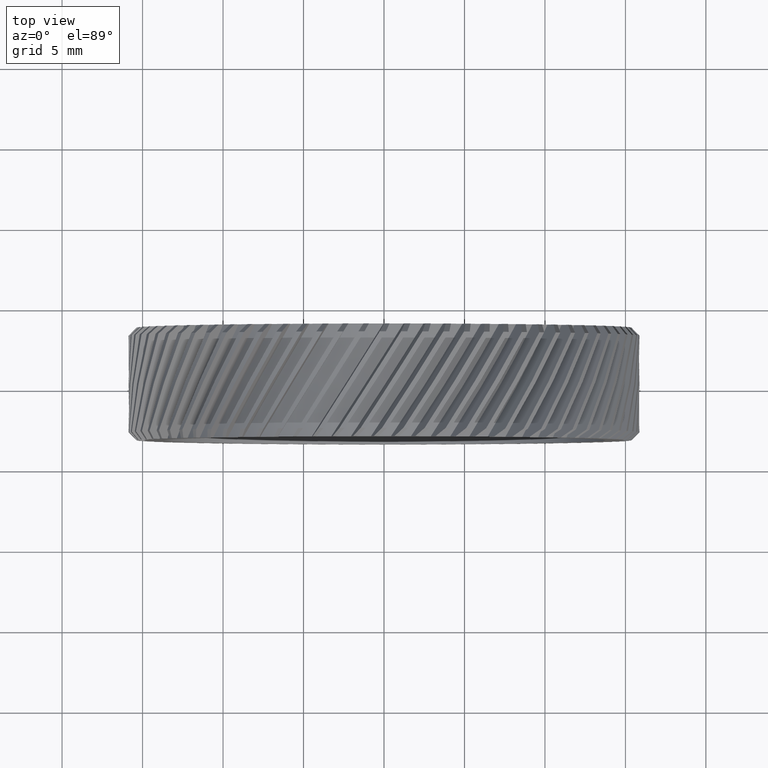
[diagram: clean part render]
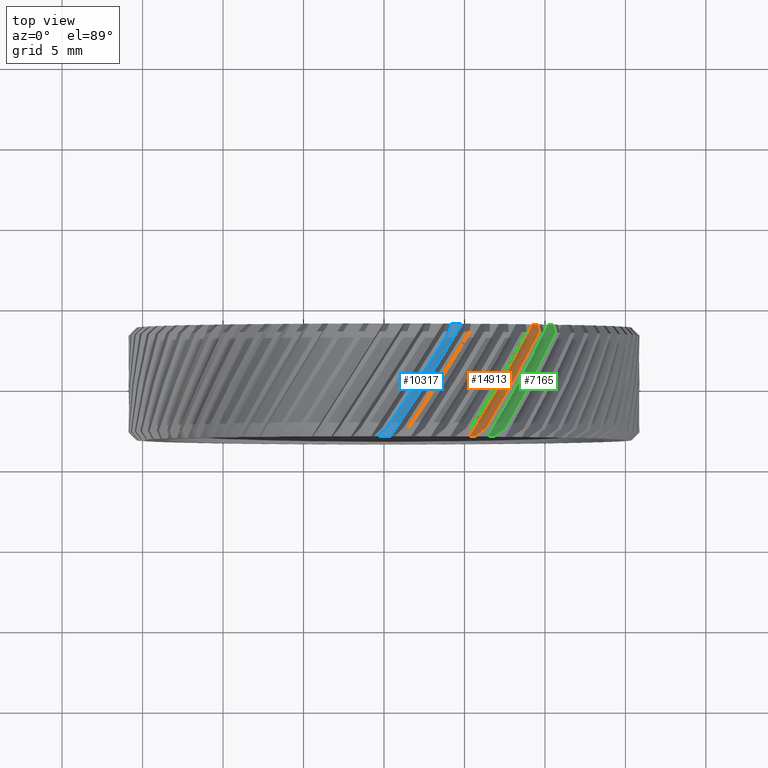
[diagram: same view with three faces highlighted in distinct colors, each labeled with its STEP entity id]
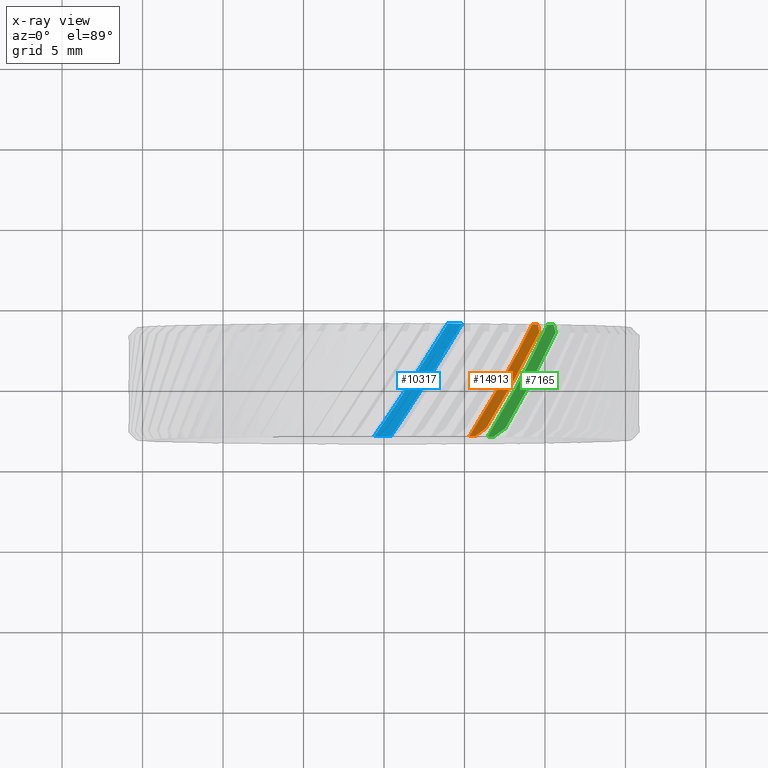
[diagram: x-ray of the same camera — body ghosted, the three highlighted faces saturated]
A machine part, top view with three faces highlighted in distinct colors.
The next image is the same camera in x-ray (body ghosted, the three faces saturated) — at least one of them is partly hidden behind the body in this view.
Their STEP definitions:

[orange] entity #14913 — the highlighted planar face has unit normal (0.6183, -0.5297, -0.5806).
#96 = VERTEX_POINT ( 'NONE', #8241 ) ;
#284 = LINE ( 'NONE', #6200, #8007 ) ;
#1459 = CARTESIAN_POINT ( 'NONE',  ( 9.653973124077118900, -6.830884482231923000, 12.60223900422448500 ) ) ;
#1503 = CARTESIAN_POINT ( 'NONE',  ( 6.344330811526889500, -12.83088448223192100, 14.55215075354536200 ) ) ;
#1509 = CARTESIAN_POINT ( 'NONE',  ( 7.523855290051343100, -10.89058348032955300, 14.03791106356484900 ) ) ;
#1564 = EDGE_CURVE ( 'NONE', #9020, #96, #4870, .T. ) ;
#1571 = CARTESIAN_POINT ( 'NONE',  ( 6.344330811526889500, -12.83088448223192100, 14.55215075354536200 ) ) ;
#1707 = CARTESIAN_POINT ( 'NONE',  ( 5.895620163532926000, -13.16554886368707000, 14.37966592381650300 ) ) ;
#2178 = VERTEX_POINT ( 'NONE', #14129 ) ;
#2230 = DIRECTION ( 'NONE',  ( -0.6845471059286898400, 0.0000000000000000000, -0.7289686274214104400 ) ) ;
#2437 = PLANE ( 'NONE',  #9044 ) ;
#2487 = CARTESIAN_POINT ( 'NONE',  ( 6.713602333045022500, -11.09272791176794500, 13.35951328079593600 ) ) ;
#3045 = FACE_OUTER_BOUND ( 'NONE', #9290, .T. ) ;
#3517 = VERTEX_POINT ( 'NONE', #1503 ) ;
#3561 = CARTESIAN_POINT ( 'NONE',  ( 9.653973124077118900, -6.830884482231923000, 12.60223900422448500 ) ) ;
#3957 = VECTOR ( 'NONE', #2230, 1000.000000000000100 ) ;
#3995 = ORIENTED_EDGE ( 'NONE', *, *, #15426, .F. ) ;
#4111 = CARTESIAN_POINT ( 'NONE',  ( 5.301741328456820700, -13.33088448223191600, 13.89809929041137700 ) ) ;
#4157 = CARTESIAN_POINT ( 'NONE',  ( 9.590179136699321200, -6.497228794031610900, 12.22988214837162800 ) ) ;
#4366 = VERTEX_POINT ( 'NONE', #10770 ) ;
#4860 =( BOUNDED_CURVE ( )  B_SPLINE_CURVE ( 3, ( #1459, #9143, #1509, #1571 ),
 .UNSPECIFIED., .F., .T. ) 
 B_SPLINE_CURVE_WITH_KNOTS ( ( 4, 4 ),
 ( 1.671082941479641100, 1.913651328048305800 ),
 .UNSPECIFIED. ) 
 CURVE ( )  GEOMETRIC_REPRESENTATION_ITEM ( )  RATIONAL_B_SPLINE_CURVE ( ( 1.000000000000000000, 0.9951027224248083500, 0.9951027224248083500, 1.000000000000000000 ) ) 
 REPRESENTATION_ITEM ( '' )  );
#4870 =( BOUNDED_CURVE ( )  B_SPLINE_CURVE ( 3, ( #13782, #2487, #6326, #8805 ),
 .UNSPECIFIED., .F., .F. ) 
 B_SPLINE_CURVE_WITH_KNOTS ( ( 4, 4 ),
 ( 4.322839739403873300, 4.626427912860425100 ),
 .UNSPECIFIED. ) 
 CURVE ( )  GEOMETRIC_REPRESENTATION_ITEM ( )  RATIONAL_B_SPLINE_CURVE ( ( 1.000000000000000000, 0.9923342545387088300, 0.9923342545387088300, 1.000000000000000000 ) ) 
 REPRESENTATION_ITEM ( '' )  );
#5045 = CARTESIAN_POINT ( 'NONE',  ( -10.37324339801700600, -3.199738791282192200, -12.03759108788204700 ) ) ;
#5091 = ORIENTED_EDGE ( 'NONE', *, *, #9904, .T. ) ;
#5181 = B_SPLINE_CURVE_WITH_KNOTS ( 'NONE', 3,
 ( #7944, #7891, #4157, #6767 ),
 .UNSPECIFIED., .F., .F.,
 ( 4, 4 ),
 ( 3.018490012218700600E-007, 0.0007563439863345751400 ),
 .UNSPECIFIED. ) ;
#6030 = DIRECTION ( 'NONE',  ( 0.6845471059286898400, 0.0000000000000000000, 0.7289686274214104400 ) ) ;
#6179 = CARTESIAN_POINT ( 'NONE',  ( -4.118017072649953600, -13.33088448223191600, 3.867075431241892700 ) ) ;
#6200 = CARTESIAN_POINT ( 'NONE',  ( -0.9309634379024506200, -6.330884482231919500, 0.8742328588211456500 ) ) ;
#6326 = CARTESIAN_POINT ( 'NONE',  ( 8.027788309750224700, -8.741369664623691800, 12.61363017691053800 ) ) ;
#6690 = CARTESIAN_POINT ( 'NONE',  ( 6.344330811526889500, -12.83088448223192100, 14.55215075354536200 ) ) ;
#6767 = CARTESIAN_POINT ( 'NONE',  ( 9.557577181781178800, -6.330884482231919500, 12.04339418163733900 ) ) ;
#7331 = EDGE_CURVE ( 'NONE', #4366, #9020, #7748, .T. ) ;
#7748 = LINE ( 'NONE', #6179, #3957 ) ;
#7891 = CARTESIAN_POINT ( 'NONE',  ( 9.622298952574166000, -6.663904853507483000, 12.41615937148640800 ) ) ;
#7944 = CARTESIAN_POINT ( 'NONE',  ( 9.653973124077118900, -6.830884482231923000, 12.60223900422448500 ) ) ;
#8007 = VECTOR ( 'NONE', #6030, 1000.000000000000100 ) ;
#8241 = CARTESIAN_POINT ( 'NONE',  ( 9.214076613013750400, -6.330884482231915900, 11.67760322880998200 ) ) ;
#8805 = CARTESIAN_POINT ( 'NONE',  ( 9.214076613013750400, -6.330884482231915900, 11.67760322880998200 ) ) ;
#8809 = DIRECTION ( 'NONE',  ( 0.6182830696335974700, -0.5297378573991635700, -0.5806064486746589400 ) ) ;
#9020 = VERTEX_POINT ( 'NONE', #4111 ) ;
#9044 = AXIS2_PLACEMENT_3D ( 'NONE', #5045, #8809, #15024 ) ;
#9134 = VERTEX_POINT ( 'NONE', #3561 ) ;
#9143 = CARTESIAN_POINT ( 'NONE',  ( 8.632498728886641700, -8.880740722461785800, 13.38474172892253800 ) ) ;
#9290 = EDGE_LOOP ( 'NONE', ( #15575, #13491, #5091, #3995, #10018, #15689 ) ) ;
#9904 = EDGE_CURVE ( 'NONE', #4366, #3517, #12868, .T. ) ;
#10018 = ORIENTED_EDGE ( 'NONE', *, *, #11341, .T. ) ;
#10770 = CARTESIAN_POINT ( 'NONE',  ( 5.670726208858723400, -13.33088448223191600, 14.29102827875458300 ) ) ;
#11341 = EDGE_CURVE ( 'NONE', #9134, #2178, #5181, .T. ) ;
#12868 = B_SPLINE_CURVE_WITH_KNOTS ( 'NONE', 3,
 ( #15270, #1707, #14194, #6690 ),
 .UNSPECIFIED., .F., .F.,
 ( 4, 4 ),
 ( 3.542590250234800800E-007, 0.0008789486521192316100 ),
 .UNSPECIFIED. ) ;
#13491 = ORIENTED_EDGE ( 'NONE', *, *, #7331, .F. ) ;
#13782 = CARTESIAN_POINT ( 'NONE',  ( 5.301741328456820700, -13.33088448223191600, 13.89809929041137700 ) ) ;
#14129 = CARTESIAN_POINT ( 'NONE',  ( 9.557577181781178800, -6.330884482231919500, 12.04339418163733900 ) ) ;
#14194 = CARTESIAN_POINT ( 'NONE',  ( 6.120155976954146500, -12.99883605878413000, 14.46666566005741200 ) ) ;
#14913 = ADVANCED_FACE ( 'NONE', ( #3045 ), #2437, .F. ) ;
#15024 = DIRECTION ( 'NONE',  ( 0.3861622788014271200, 0.8481614247524720300, -0.3626305171834624500 ) ) ;
#15270 = CARTESIAN_POINT ( 'NONE',  ( 5.670726208858723400, -13.33088448223191600, 14.29102827875458300 ) ) ;
#15337 = EDGE_CURVE ( 'NONE', #96, #2178, #284, .T. ) ;
#15426 = EDGE_CURVE ( 'NONE', #9134, #3517, #4860, .T. ) ;
#15575 = ORIENTED_EDGE ( 'NONE', *, *, #1564, .F. ) ;
#15689 = ORIENTED_EDGE ( 'NONE', *, *, #15337, .F. ) ;

[blue] entity #10317 — the highlighted cylindrical surface (partial cylindrical patch) has radius 14.875 mm, axis along (0, 1, 0).
#250 = DIRECTION ( 'NONE',  ( 0.0000000000000000000, 1.000000000000000000, 0.0000000000000000000 ) ) ;
#1757 = CARTESIAN_POINT ( 'NONE',  ( 0.4362179220286097600, -13.33088448223191600, 14.86860245364376200 ) ) ;
#1817 = EDGE_CURVE ( 'NONE', #3806, #11565, #14844, .T. ) ;
#1946 = EDGE_LOOP ( 'NONE', ( #10525, #9625, #15926, #10042 ) ) ;
#2328 = CIRCLE ( 'NONE', #12988, 14.87500000000000700 ) ;
#2572 = DIRECTION ( 'NONE',  ( -0.0000000000000000000, 1.000000000000000000, -0.0000000000000000000 ) ) ;
#3806 = VERTEX_POINT ( 'NONE', #6639 ) ;
#3811 = CARTESIAN_POINT ( 'NONE',  ( -0.5987808434798008700, -13.33088448223191400, 14.86294339965950000 ) ) ;
#4057 = VERTEX_POINT ( 'NONE', #16099 ) ;
#4625 = CARTESIAN_POINT ( 'NONE',  ( 0.0000000000000000000, -13.33088448223191600, 0.0000000000000000000 ) ) ;
#5927 = DIRECTION ( 'NONE',  ( -0.0000000000000000000, -1.000000000000000000, -0.0000000000000000000 ) ) ;
#6333 = EDGE_CURVE ( 'NONE', #15725, #11565, #10118, .T. ) ;
#6351 = DIRECTION ( 'NONE',  ( -0.4067366430758204700, 0.0000000000000000000, -0.9135454576425918700 ) ) ;
#6639 = CARTESIAN_POINT ( 'NONE',  ( 3.954071477746325100, -6.330884482231919500, 14.33983764722854600 ) ) ;
#6813 = CARTESIAN_POINT ( 'NONE',  ( 1.946669067784003100, -11.09272791176794500, 14.82428854706233200 ) ) ;
#7723 = DIRECTION ( 'NONE',  ( 0.4067366430758009900, 0.0000000000000000000, 0.9135454576426005300 ) ) ;
#7974 = CARTESIAN_POINT ( 'NONE',  ( 3.954071477746325100, -6.330884482231919500, 14.33983764722854600 ) ) ;
#9065 = CYLINDRICAL_SURFACE ( 'NONE', #9552, 14.87500000000000700 ) ;
#9464 = EDGE_CURVE ( 'NONE', #15725, #4057, #15832, .T. ) ;
#9552 = AXIS2_PLACEMENT_3D ( 'NONE', #11469, #250, #7723 ) ;
#9625 = ORIENTED_EDGE ( 'NONE', *, *, #10284, .F. ) ;
#9629 = FACE_OUTER_BOUND ( 'NONE', #1946, .T. ) ;
#10042 = ORIENTED_EDGE ( 'NONE', *, *, #6333, .F. ) ;
#10118 = CIRCLE ( 'NONE', #12197, 14.87500000000000700 ) ;
#10284 = EDGE_CURVE ( 'NONE', #3806, #4057, #2328, .T. ) ;
#10317 = ADVANCED_FACE ( 'NONE', ( #9629 ), #9065, .T. ) ;
#10524 = CARTESIAN_POINT ( 'NONE',  ( 2.469616423057035400, -8.768720868185248200, 14.74916176484697800 ) ) ;
#10525 = ORIENTED_EDGE ( 'NONE', *, *, #9464, .T. ) ;
#10533 = CARTESIAN_POINT ( 'NONE',  ( 0.4362179220286097600, -13.33088448223191600, 14.86860245364376200 ) ) ;
#11469 = CARTESIAN_POINT ( 'NONE',  ( 0.0000000000000000000, 46.02073106022621100, 0.0000000000000000000 ) ) ;
#11565 = VERTEX_POINT ( 'NONE', #3811 ) ;
#11666 = CARTESIAN_POINT ( 'NONE',  ( 0.9398259385467447900, -11.12077022890075600, 14.92492898636009400 ) ) ;
#11893 = CARTESIAN_POINT ( 'NONE',  ( 4.861182011085586100, -6.330884482231915900, 14.05825502881129600 ) ) ;
#12197 = AXIS2_PLACEMENT_3D ( 'NONE', #4625, #5927, #13485 ) ;
#12693 = CARTESIAN_POINT ( 'NONE',  ( 0.0000000000000000000, -6.330884482231915900, 0.0000000000000000000 ) ) ;
#12988 = AXIS2_PLACEMENT_3D ( 'NONE', #12693, #2572, #6351 ) ;
#13044 = CARTESIAN_POINT ( 'NONE',  ( -0.5987808434798008700, -13.33088448223191400, 14.86294339965950000 ) ) ;
#13485 = DIRECTION ( 'NONE',  ( 0.4067366430758009900, 0.0000000000000000000, 0.9135454576426005300 ) ) ;
#14384 = CARTESIAN_POINT ( 'NONE',  ( 3.433051325515616500, -8.741369664623690000, 14.55208610414348800 ) ) ;
#14844 =( BOUNDED_CURVE ( )  B_SPLINE_CURVE ( 3, ( #7974, #10524, #11666, #13044 ),
 .UNSPECIFIED., .F., .T. ) 
 B_SPLINE_CURVE_WITH_KNOTS ( ( 4, 4 ),
 ( 1.720620993473467500, 2.029940400860878600 ),
 .UNSPECIFIED. ) 
 CURVE ( )  GEOMETRIC_REPRESENTATION_ITEM ( )  RATIONAL_B_SPLINE_CURVE ( ( 1.000000000000000000, 0.9920426723627562300, 0.9920426723627562300, 1.000000000000000000 ) ) 
 REPRESENTATION_ITEM ( '' )  );
#15725 = VERTEX_POINT ( 'NONE', #1757 ) ;
#15832 =( BOUNDED_CURVE ( )  B_SPLINE_CURVE ( 3, ( #10533, #6813, #14384, #11893 ),
 .UNSPECIFIED., .F., .T. ) 
 B_SPLINE_CURVE_WITH_KNOTS ( ( 4, 4 ),
 ( 4.322839739403873300, 4.626427912860425100 ),
 .UNSPECIFIED. ) 
 CURVE ( )  GEOMETRIC_REPRESENTATION_ITEM ( )  RATIONAL_B_SPLINE_CURVE ( ( 1.000000000000000000, 0.9923342545387088300, 0.9923342545387088300, 1.000000000000000000 ) ) 
 REPRESENTATION_ITEM ( '' )  );
#15926 = ORIENTED_EDGE ( 'NONE', *, *, #1817, .T. ) ;
#16099 = CARTESIAN_POINT ( 'NONE',  ( 4.861182011085586100, -6.330884482231915900, 14.05825502881129600 ) ) ;

[green] entity #7165 — the highlighted planar face has unit normal (0.5675, -0.5297, -0.6303).
#731 = CARTESIAN_POINT ( 'NONE',  ( 6.446110350435212400, -13.33088448223191600, 13.40571841976446700 ) ) ;
#825 = EDGE_CURVE ( 'NONE', #6312, #8183, #3753, .T. ) ;
#1924 = VECTOR ( 'NONE', #8473, 1000.000000000000000 ) ;
#2002 = CARTESIAN_POINT ( 'NONE',  ( 7.539772941306566200, -12.83088448223192100, 13.97023439293491800 ) ) ;
#2257 = CARTESIAN_POINT ( 'NONE',  ( 10.15891820292336500, -6.330884482231915900, 10.86563417138238400 ) ) ;
#2388 = CARTESIAN_POINT ( 'NONE',  ( 10.53182266489131500, -6.330884482231919500, 11.20139885707503800 ) ) ;
#3057 = ORIENTED_EDGE ( 'NONE', *, *, #9193, .F. ) ;
#3373 = CARTESIAN_POINT ( 'NONE',  ( 7.807952044026610100, -11.09272791176794500, 12.75087982314205500 ) ) ;
#3753 = B_SPLINE_CURVE_WITH_KNOTS ( 'NONE', 3,
 ( #3932, #15094, #6449, #11374 ),
 .UNSPECIFIED., .F., .F.,
 ( 4, 4 ),
 ( 3.542590250242228700E-007, 0.0008789486521192323700 ),
 .UNSPECIFIED. ) ;
#3932 = CARTESIAN_POINT ( 'NONE',  ( 6.846680599254050900, -13.33088448223191600, 13.76639349182633900 ) ) ;
#4513 = CARTESIAN_POINT ( 'NONE',  ( 9.055115096028034200, -8.741369664623690000, 11.89764438801713800 ) ) ;
#5372 = VERTEX_POINT ( 'NONE', #10199 ) ;
#5709 = CARTESIAN_POINT ( 'NONE',  ( 6.846680599254050900, -13.33088448223191600, 13.76639349182633900 ) ) ;
#6019 = VERTEX_POINT ( 'NONE', #15347 ) ;
#6223 = CARTESIAN_POINT ( 'NONE',  ( 10.57991519102857400, -6.497228794031611800, 11.38450472298574600 ) ) ;
#6312 = VERTEX_POINT ( 'NONE', #5709 ) ;
#6406 =( BOUNDED_CURVE ( )  B_SPLINE_CURVE ( 3, ( #10478, #11725, #12887, #14262 ),
 .UNSPECIFIED., .F., .F. ) 
 B_SPLINE_CURVE_WITH_KNOTS ( ( 4, 4 ),
 ( 1.671082941479641100, 1.913651328048305800 ),
 .UNSPECIFIED. ) 
 CURVE ( )  GEOMETRIC_REPRESENTATION_ITEM ( )  RATIONAL_B_SPLINE_CURVE ( ( 1.000000000000000000, 0.9951027224248083500, 0.9951027224248083500, 1.000000000000000000 ) ) 
 REPRESENTATION_ITEM ( '' )  );
#6449 = CARTESIAN_POINT ( 'NONE',  ( 7.309231111171256700, -12.99883605878413200, 13.90380757438832400 ) ) ;
#6670 = EDGE_CURVE ( 'NONE', #5372, #11769, #7616, .T. ) ;
#6913 = CARTESIAN_POINT ( 'NONE',  ( 10.53182266489131500, -6.330884482231919500, 11.20139885707503800 ) ) ;
#7159 = CARTESIAN_POINT ( 'NONE',  ( -11.34414263453128400, -3.199738791282192200, -11.12736292573268800 ) ) ;
#7165 = ADVANCED_FACE ( 'NONE', ( #8946 ), #9666, .F. ) ;
#7616 =( BOUNDED_CURVE ( )  B_SPLINE_CURVE ( 3, ( #731, #3373, #4513, #2257 ),
 .UNSPECIFIED., .F., .F. ) 
 B_SPLINE_CURVE_WITH_KNOTS ( ( 4, 4 ),
 ( 4.322839739403873300, 4.626427912860425100 ),
 .UNSPECIFIED. ) 
 CURVE ( )  GEOMETRIC_REPRESENTATION_ITEM ( )  RATIONAL_B_SPLINE_CURVE ( ( 1.000000000000000000, 0.9923342545387088300, 0.9923342545387088300, 1.000000000000000000 ) ) 
 REPRESENTATION_ITEM ( '' )  );
#8103 = VECTOR ( 'NONE', #13570, 1000.000000000000000 ) ;
#8183 = VERTEX_POINT ( 'NONE', #2002 ) ;
#8473 = DIRECTION ( 'NONE',  ( 0.7431448254773954700, 0.0000000000000000000, 0.6691306063588569100 ) ) ;
#8540 = DIRECTION ( 'NONE',  ( 0.5675307684348136500, -0.5297378573991636800, -0.6303067739743349900 ) ) ;
#8655 = ORIENTED_EDGE ( 'NONE', *, *, #10548, .F. ) ;
#8819 = CARTESIAN_POINT ( 'NONE',  ( 10.62750963448044300, -6.663904853507484700, 11.56744092873981300 ) ) ;
#8901 = LINE ( 'NONE', #11162, #8103 ) ;
#8946 = FACE_OUTER_BOUND ( 'NONE', #9813, .T. ) ;
#9080 = AXIS2_PLACEMENT_3D ( 'NONE', #7159, #8540, #12252 ) ;
#9193 = EDGE_CURVE ( 'NONE', #6312, #5372, #8901, .T. ) ;
#9258 = EDGE_CURVE ( 'NONE', #6019, #15140, #14359, .T. ) ;
#9666 = PLANE ( 'NONE',  #9080 ) ;
#9678 = CARTESIAN_POINT ( 'NONE',  ( -0.8545444978957631400, -6.330884482231919500, 0.9490678138414668800 ) ) ;
#9813 = EDGE_LOOP ( 'NONE', ( #10541, #3057, #12665, #12837, #16229, #8655 ) ) ;
#10169 = CARTESIAN_POINT ( 'NONE',  ( 10.67464346256137000, -6.830884482231923000, 11.75021752765437300 ) ) ;
#10199 = CARTESIAN_POINT ( 'NONE',  ( 6.446110350435212400, -13.33088448223191600, 13.40571841976446700 ) ) ;
#10478 = CARTESIAN_POINT ( 'NONE',  ( 10.67464346256137000, -6.830884482231923000, 11.75021752765437300 ) ) ;
#10541 = ORIENTED_EDGE ( 'NONE', *, *, #6670, .F. ) ;
#10548 = EDGE_CURVE ( 'NONE', #11769, #15140, #10591, .T. ) ;
#10591 = LINE ( 'NONE', #9678, #1924 ) ;
#11162 = CARTESIAN_POINT ( 'NONE',  ( -3.779986075073519900, -13.33088448223191600, 4.198099840856746900 ) ) ;
#11374 = CARTESIAN_POINT ( 'NONE',  ( 7.539772941306566200, -12.83088448223192100, 13.97023439293491800 ) ) ;
#11725 = CARTESIAN_POINT ( 'NONE',  ( 9.722229662252248200, -8.880740722461785800, 12.61545067956798700 ) ) ;
#11735 = EDGE_CURVE ( 'NONE', #6019, #8183, #6406, .T. ) ;
#11769 = VERTEX_POINT ( 'NONE', #11834 ) ;
#11834 = CARTESIAN_POINT ( 'NONE',  ( 10.15891820292336500, -6.330884482231915900, 10.86563417138238400 ) ) ;
#12252 = DIRECTION ( 'NONE',  ( 0.3544638137327439400, 0.8481614247524720300, -0.3936719475856707600 ) ) ;
#12665 = ORIENTED_EDGE ( 'NONE', *, *, #825, .T. ) ;
#12837 = ORIENTED_EDGE ( 'NONE', *, *, #11735, .F. ) ;
#12887 = CARTESIAN_POINT ( 'NONE',  ( 8.672130193252730400, -10.89058348032955300, 13.35909814940605300 ) ) ;
#13570 = DIRECTION ( 'NONE',  ( -0.7431448254773954700, 0.0000000000000000000, -0.6691306063588569100 ) ) ;
#14262 = CARTESIAN_POINT ( 'NONE',  ( 7.539772941306566200, -12.83088448223192100, 13.97023439293491800 ) ) ;
#14359 = B_SPLINE_CURVE_WITH_KNOTS ( 'NONE', 3,
 ( #10169, #8819, #6223, #2388 ),
 .UNSPECIFIED., .F., .F.,
 ( 4, 4 ),
 ( 3.018490012217889600E-007, 0.0007563439863345735100 ),
 .UNSPECIFIED. ) ;
#15094 = CARTESIAN_POINT ( 'NONE',  ( 7.078202826152107700, -13.16554886368706600, 13.83590163108562800 ) ) ;
#15140 = VERTEX_POINT ( 'NONE', #6913 ) ;
#15347 = CARTESIAN_POINT ( 'NONE',  ( 10.67464346256137000, -6.830884482231923000, 11.75021752765437300 ) ) ;
#16229 = ORIENTED_EDGE ( 'NONE', *, *, #9258, .T. ) ;